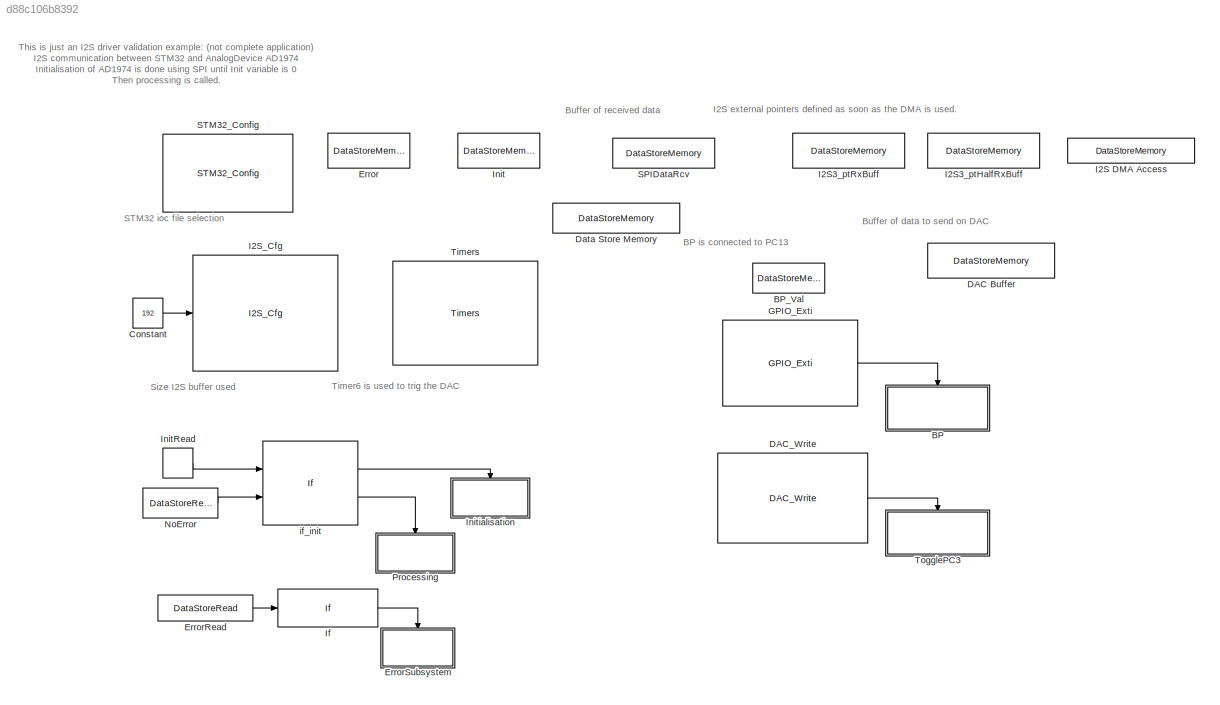
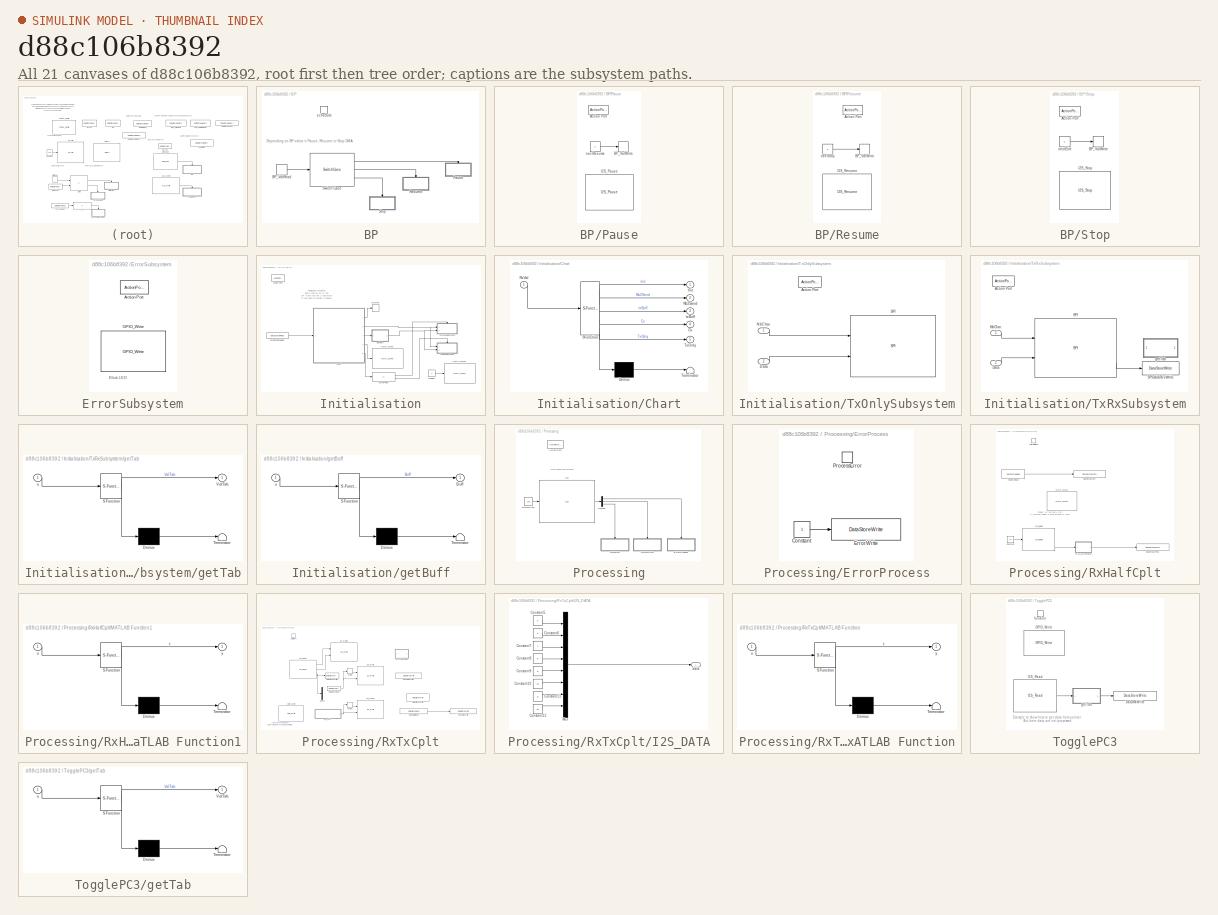
[diagram: thumbnail index - all 21 canvases of the model, root first then tree order]
MODEL slx_d88c106b8392
KIND model
CONFIG AbsTol = auto
CONFIG EnableMultiTasking = off
CONFIG FixedStep = 0.01
CONFIG MaxStep = auto
CONFIG MinStep = auto
CONFIG RelTol = 1e-3
CONFIG SampleTimeConstraint = Unconstrained
CONFIG Solver = FixedStepDiscrete
CONFIG SolverName = FixedStepDiscrete
CONFIG StartTime = 0.0
CONFIG StopTime = 10.0
BLOCK [SubSystem] BP
  Ports = [0, 0, 0, 1]
  RequestExecContextInheritance = off
  TreatAsAtomicUnit = on
BLOCK [DataStoreRead] BP/BP_ValRead
  DataStoreName = BP_Val
  Ports = [0, 1]
BLOCK [SubSystem] BP/Pause
  Ports = [0, 0, 0, 0, 0, 0, 0, 1]
  RequestExecContextInheritance = off
  TreatAsAtomicUnit = on
BLOCK [ActionPort] BP/Pause/Action Port
  ActionType = case
BLOCK [DataStoreWrite] BP/Pause/BP_ValWrite
  DataStoreName = BP_Val
  Ports = [1]
BLOCK [Reference] BP/Pause/I2S_Pause  REF=I2S_Lib/I2S_Pause
  Ports = []
  SourceBlock = I2S_Lib/I2S_Pause
  SourceProductName = Target Support Package - STM32 Adapter
  SourceType = I2S
BLOCK [Constant] BP/Pause/nextResume
  OutDataTypeStr = uint8
  Value = 2
BLOCK [SubSystem] BP/Resume
  Ports = [0, 0, 0, 0, 0, 0, 0, 1]
  RequestExecContextInheritance = off
  TreatAsAtomicUnit = on
BLOCK [ActionPort] BP/Resume/Action Port
  ActionType = case
BLOCK [DataStoreWrite] BP/Resume/BP_ValWrite
  DataStoreName = BP_Val
  Ports = [1]
BLOCK [Reference] BP/Resume/I2S_Resume  REF=I2S_Lib/I2S_Resume
  Ports = []
  SourceBlock = I2S_Lib/I2S_Resume
  SourceProductName = Target Support Package - STM32 Adapter
  SourceType = I2S
BLOCK [Constant] BP/Resume/nextStop 
  OutDataTypeStr = uint8
  Value = 3
BLOCK [SubSystem] BP/Stop
  Ports = [0, 0, 0, 0, 0, 0, 0, 1]
  RequestExecContextInheritance = off
  TreatAsAtomicUnit = on
BLOCK [ActionPort] BP/Stop/Action Port
  ActionType = case
BLOCK [DataStoreWrite] BP/Stop/BP_ValWrite
  DataStoreName = BP_Val
  Ports = [1]
BLOCK [Reference] BP/Stop/I2S_Stop  REF=I2S_Lib/I2S_Stop
  Ports = []
  SourceBlock = I2S_Lib/I2S_Stop
  SourceProductName = Target Support Package - STM32 Adapter
  SourceType = I2S
BLOCK [Constant] BP/Stop/nextEnd
  OutDataTypeStr = uint8
  Value = 0
BLOCK [SwitchCase] BP/Switch Case
  CaseConditions = {1,2,3}
  Ports = [1, 3]
  ShowDefaultCase = off
BLOCK [TriggerPort] BP/schedule
  Ports = []
  StatesWhenEnabling = held
  TriggerType = function-call
  VariantControl = Variant
BLOCK [DataStoreMemory] BP_Val
  DataStoreName = BP_Val
  InitialValue = 1
  OutDataTypeStr = uint8
  ReadBeforeWriteMsg = warning
  ShowAdditionalParam = off
  WriteAfterReadMsg = warning
  WriteAfterWriteMsg = warning
BLOCK [Constant] Constant
  OutDataTypeStr = uint8
  Value = 192
BLOCK [DataStoreMemory] DAC Buffer
  DataStoreName = DAC1_DmaCh1
  Dimensions = 48
  OutDataTypeStr = uint16
  RTWStateStorageClass = ImportedExternPointer
  ReadBeforeWriteMsg = warning
  ShowAdditionalParam = off
  WriteAfterReadMsg = warning
  WriteAfterWriteMsg = warning
BLOCK [Reference] DAC_Write  REF=DAC_Lib/DAC_Write
  Ports = [0, 1]
  SourceBlock = DAC_Lib/DAC_Write
  SourceProductName = Target Support Package - STM32 Adapter
  SourceType = DAC_Write
BLOCK [DataStoreMemory] Data Store Memory
  DataStoreName = I2S3_RxBuffer
  Dimensions = 192
  ReadBeforeWriteMsg = warning
  ShowAdditionalParam = off
  WriteAfterReadMsg = warning
  WriteAfterWriteMsg = warning
BLOCK [DataStoreMemory] Error
  DataStoreName = ErrorDetected
  OutDataTypeStr = uint8
  ReadBeforeWriteMsg = warning
  ShowAdditionalParam = off
  WriteAfterReadMsg = warning
  WriteAfterWriteMsg = warning
BLOCK [DataStoreRead] ErrorRead
  DataStoreName = ErrorDetected
  Ports = [0, 1]
BLOCK [SubSystem] ErrorSubsystem
  Ports = [0, 0, 0, 0, 0, 0, 0, 1]
  RequestExecContextInheritance = off
  TreatAsAtomicUnit = on
BLOCK [ActionPort] ErrorSubsystem/Action Port
  ActionType = then
BLOCK [Reference] ErrorSubsystem/GPIO_Write  REF=GPIO_Lib/GPIO_Write
  Ports = []
  SourceBlock = GPIO_Lib/GPIO_Write
  SourceProductName = Target Support Package - STM32 Adapter
  SourceType = GPIO_Write
BLOCK [Reference] GPIO_Exti  REF=GPIO_Lib/GPIO_Exti
  Ports = [0, 1]
  SourceBlock = GPIO_Lib/GPIO_Exti
  SourceProductName = Target Support Package - STM32 Adapter
  SourceType = GPIO_Exti
BLOCK [DataStoreMemory] I2S DMA  Access
  DataStoreName = I2S_Value
  Dimensions = 96
  OutDataTypeStr = uint16
  ReadBeforeWriteMsg = warning
  ShowAdditionalParam = off
  WriteAfterReadMsg = warning
  WriteAfterWriteMsg = warning
BLOCK [DataStoreMemory] I2S3_ptHalfRxBuff
  DataStoreName = I2S3_ptHalfRxBuff
  Dimensions = 96
  OutDataTypeStr = uint16
  RTWStateStorageClass = ImportedExternPointer
  ReadBeforeWriteMsg = warning
  ShowAdditionalParam = off
  WriteAfterReadMsg = warning
  WriteAfterWriteMsg = warning
BLOCK [DataStoreMemory] I2S3_ptRxBuff
  DataStoreName = I2S3_ptRxBuff
  Dimensions = 96
  OutDataTypeStr = uint16
  RTWStateStorageClass = ImportedExternPointer
  ReadBeforeWriteMsg = warning
  ShowAdditionalParam = off
  WriteAfterReadMsg = warning
  WriteAfterWriteMsg = warning
BLOCK [Reference] I2S_Cfg  REF=I2S_Lib/I2S_Cfg
  Ports = [1]
  SourceBlock = I2S_Lib/I2S_Cfg
  SourceProductName = Target Support Package - STM32 Adapter
  SourceType = I2S
BLOCK [If] If
  Ports = [1, 1]
  ShowElse = off
BLOCK [DataStoreMemory] Init
  DataStoreName = Init
  OutDataTypeStr = uint8
  ReadBeforeWriteMsg = warning
  ShowAdditionalParam = off
  WriteAfterReadMsg = warning
  WriteAfterWriteMsg = warning
BLOCK [DataStoreRead] InitRead
  DataStoreName = Init
  Ports = [0, 1]
BLOCK [SubSystem] Initialisation
  Ports = [0, 0, 0, 0, 0, 0, 0, 1]
  RequestExecContextInheritance = off
  TreatAsAtomicUnit = on
BLOCK [ActionPort] Initialisation/Action Port
  ActionType = then
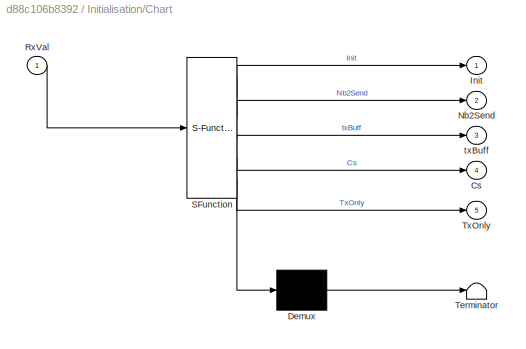
BLOCK [SubSystem] Initialisation/Chart
  ErrorFcn = Stateflow.Translate.translate
  PermitHierarchicalResolution = ExplicitOnly
  Ports = [1, 5]
  RequestExecContextInheritance = off
  SFBlockType = Chart
  TreatAsAtomicUnit = on
BLOCK [Demux] Initialisation/Chart/ Demux 
  Outputs = 1
  Ports = [1, 1]
BLOCK [S-Function] Initialisation/Chart/ SFunction 
  EnableBusSupport = off
  FunctionName = sf_sfun
  PortCounts = [1 6]
  Ports = [1, 6]
  SFcnIsStateOwnerBlock = off
  SFunctionDeploymentMode = off
  Tag = Stateflow S-Function I2S_Test 3
BLOCK [Terminator] Initialisation/Chart/ Terminator 
BLOCK [Outport] Initialisation/Chart/Cs
  IconDisplay = Port number
  Port = 4
BLOCK [Outport] Initialisation/Chart/Init
  IconDisplay = Port number
BLOCK [Outport] Initialisation/Chart/Nb2Send
  IconDisplay = Port number
  Port = 2
BLOCK [Inport] Initialisation/Chart/RxVal
  IconDisplay = Port number
BLOCK [Outport] Initialisation/Chart/TxOnly
  IconDisplay = Port number
  Port = 5
BLOCK [Outport] Initialisation/Chart/txBuff
  IconDisplay = Port number
  Port = 3
BLOCK [Reference] Initialisation/GPIO_Write  REF=GPIO_Lib/GPIO_Write
  Ports = [1]
  Priority = 0
  SourceBlock = GPIO_Lib/GPIO_Write
  SourceProductName = Target Support Package - STM32 Adapter
  SourceType = GPIO_Write
BLOCK [Reference] Initialisation/GPIO_Write1  REF=GPIO_Lib/GPIO_Write
  Ports = [1]
  Priority = 2
  SourceBlock = GPIO_Lib/GPIO_Write
  SourceProductName = Target Support Package - STM32 Adapter
  SourceType = GPIO_Write
BLOCK [DataStoreWrite] Initialisation/IntWrite
  DataStoreName = Init
  Ports = [1]
BLOCK [DataStoreRead] Initialisation/SPIDataRcvRead
  DataStoreName = SPIDataRcv
  Ports = [0, 1]
BLOCK [SubSystem] Initialisation/TxOnlySubsystem
  Ports = [2, 0, 0, 0, 0, 0, 0, 1]
  RequestExecContextInheritance = off
  TreatAsAtomicUnit = on
BLOCK [ActionPort] Initialisation/TxOnlySubsystem/Action Port
  ActionType = then
BLOCK [Inport] Initialisation/TxOnlySubsystem/Data
  IconDisplay = Port number
  Port = 2
BLOCK [Inport] Initialisation/TxOnlySubsystem/NbChar
  IconDisplay = Port number
BLOCK [Reference] Initialisation/TxOnlySubsystem/SPI  REF=SPI_Lib/SPI
  Ports = [2, 1]
  SourceBlock = SPI_Lib/SPI
  SourceProductName = Target Support Package - STM32 Adapter
  SourceType = SPI
BLOCK [If] Initialisation/TxOnlyTest
  Ports = [1, 2]
BLOCK [SubSystem] Initialisation/TxRxSubsystem
  Ports = [2, 0, 0, 0, 0, 0, 0, 1]
  RequestExecContextInheritance = off
  TreatAsAtomicUnit = on
BLOCK [ActionPort] Initialisation/TxRxSubsystem/Action Port
  ActionType = else
BLOCK [Inport] Initialisation/TxRxSubsystem/Data
  IconDisplay = Port number
  Port = 2
BLOCK [Inport] Initialisation/TxRxSubsystem/NbChar
  IconDisplay = Port number
BLOCK [Reference] Initialisation/TxRxSubsystem/SPI  REF=SPI_Lib/SPI
  Ports = [2, 3]
  Priority = 1
  SourceBlock = SPI_Lib/SPI
  SourceProductName = Target Support Package - STM32 Adapter
  SourceType = SPI
BLOCK [DataStoreWrite] Initialisation/TxRxSubsystem/SPIDataRcvWrite
  DataStoreName = SPIDataRcv
  Ports = [1]
BLOCK [SubSystem] Initialisation/TxRxSubsystem/getTab
  Commented = on
  ErrorFcn = Stateflow.Translate.translate
  PermitHierarchicalResolution = ExplicitOnly
  Ports = [1, 1]
  RequestExecContextInheritance = off
  SFBlockType = MATLAB Function
  TreatAsAtomicUnit = on
BLOCK [Demux] Initialisation/TxRxSubsystem/getTab/ Demux 
  Outputs = 1
  Ports = [1, 1]
BLOCK [S-Function] Initialisation/TxRxSubsystem/getTab/ SFunction 
  EnableBusSupport = off
  FunctionName = sf_sfun
  PortCounts = [1 2]
  Ports = [1, 2]
  SFcnIsStateOwnerBlock = off
  SFunctionDeploymentMode = off
  Tag = Stateflow S-Function I2S_Test 4
BLOCK [Terminator] Initialisation/TxRxSubsystem/getTab/ Terminator 
BLOCK [Outport] Initialisation/TxRxSubsystem/getTab/ValTab
  IconDisplay = Port number
BLOCK [Inport] Initialisation/TxRxSubsystem/getTab/u
  IconDisplay = Port number
BLOCK [SubSystem] Initialisation/getBuff
  ErrorFcn = Stateflow.Translate.translate
  PermitHierarchicalResolution = ExplicitOnly
  Ports = [1, 1]
  RequestExecContextInheritance = off
  SFBlockType = MATLAB Function
  TreatAsAtomicUnit = on
BLOCK [Demux] Initialisation/getBuff/ Demux 
  Outputs = 1
  Ports = [1, 1]
BLOCK [S-Function] Initialisation/getBuff/ SFunction 
  EnableBusSupport = off
  FunctionName = sf_sfun
  PortCounts = [1 2]
  Ports = [1, 2]
  SFcnIsStateOwnerBlock = off
  SFunctionDeploymentMode = off
  Tag = Stateflow S-Function I2S_Test 1
BLOCK [Terminator] Initialisation/getBuff/ Terminator 
BLOCK [Outport] Initialisation/getBuff/Buff
  IconDisplay = Port number
BLOCK [Inport] Initialisation/getBuff/u
  IconDisplay = Port number
BLOCK [Constant] Initialisation/unSelect
BLOCK [DataStoreRead] NoError
  DataStoreName = ErrorDetected
  Ports = [0, 1]
BLOCK [SubSystem] Processing
  Ports = [0, 0, 0, 0, 0, 0, 0, 1]
  RequestExecContextInheritance = off
  TreatAsAtomicUnit = on
BLOCK [ActionPort] Processing/Action Port
  ActionType = else
BLOCK [Constant] Processing/BufferSize
  Value = 192
BLOCK [Demux] Processing/Demux
  DisplayOption = bar
  Outputs = 3
  Ports = [1, 3]
BLOCK [SubSystem] Processing/ErrorProcess
  Ports = [0, 0, 0, 1]
  RequestExecContextInheritance = off
  TreatAsAtomicUnit = on
BLOCK [Constant] Processing/ErrorProcess/Constant
  OutDataTypeStr = uint8
BLOCK [DataStoreWrite] Processing/ErrorProcess/ErrorWrite
  DataStoreName = ErrorDetected
  Ports = [1]
BLOCK [TriggerPort] Processing/ErrorProcess/ProcessError
  Ports = []
  StatesWhenEnabling = held
  TriggerType = function-call
  VariantControl = Variant
BLOCK [Reference] Processing/I2S  REF=I2S_Lib/I2S
  Ports = [1, 1]
  SourceBlock = I2S_Lib/I2S
  SourceProductName = Target Support Package - STM32 Adapter
  SourceType = I2S
BLOCK [SubSystem] Processing/RxHalfCplt
  Ports = [0, 0, 0, 1]
  RequestExecContextInheritance = off
  TreatAsAtomicUnit = on
BLOCK [Constant] Processing/RxHalfCplt/Constant
  OutDataTypeStr = uint16
  Value = 21
BLOCK [DataStoreWrite] Processing/RxHalfCplt/DacDmaWrite
  Commented = on
  DataStoreName = DAC1_DmaCh1
  Ports = [1]
BLOCK [DataStoreWrite] Processing/RxHalfCplt/DacDmaWrite1
  DataStoreName = DAC1_DmaCh1
  Ports = [1]
BLOCK [Reference] Processing/RxHalfCplt/GPIO_Write  REF=GPIO_Lib/GPIO_Write
  Ports = []
  SourceBlock = GPIO_Lib/GPIO_Write
  SourceProductName = Target Support Package - STM32 Adapter
  SourceType = GPIO_Write
BLOCK [Reference] Processing/RxHalfCplt/I2S_Read  REF=I2S_Lib/I2S_Read
  Ports = [1, 3]
  SourceBlock = I2S_Lib/I2S_Read
  SourceProductName = Target Support Package - STM32 Adapter
  SourceType = I2S
BLOCK [SubSystem] Processing/RxHalfCplt/MATLAB Function1
  ErrorFcn = Stateflow.Translate.translate
  PermitHierarchicalResolution = ExplicitOnly
  Ports = [1, 1]
  RequestExecContextInheritance = off
  SFBlockType = MATLAB Function
  TreatAsAtomicUnit = on
BLOCK [Demux] Processing/RxHalfCplt/MATLAB Function1/ Demux 
  Outputs = 1
  Ports = [1, 1]
BLOCK [S-Function] Processing/RxHalfCplt/MATLAB Function1/ SFunction 
  EnableBusSupport = off
  FunctionName = sf_sfun
  PortCounts = [1 2]
  Ports = [1, 2]
  SFcnIsStateOwnerBlock = off
  SFunctionDeploymentMode = off
  Tag = Stateflow S-Function I2S_Test 7
BLOCK [Terminator] Processing/RxHalfCplt/MATLAB Function1/ Terminator 
BLOCK [Inport] Processing/RxHalfCplt/MATLAB Function1/u
  IconDisplay = Port number
BLOCK [Outport] Processing/RxHalfCplt/MATLAB Function1/y
  IconDisplay = Port number
BLOCK [DataStoreRead] Processing/RxHalfCplt/RxBuffRead
  Commented = on
  DataStoreName = I2S3_ptRxBuff
  Ports = [0, 1]
BLOCK [TriggerPort] Processing/RxHalfCplt/halfCallback
  Ports = []
  StatesWhenEnabling = held
  TriggerType = function-call
  VariantControl = Variant
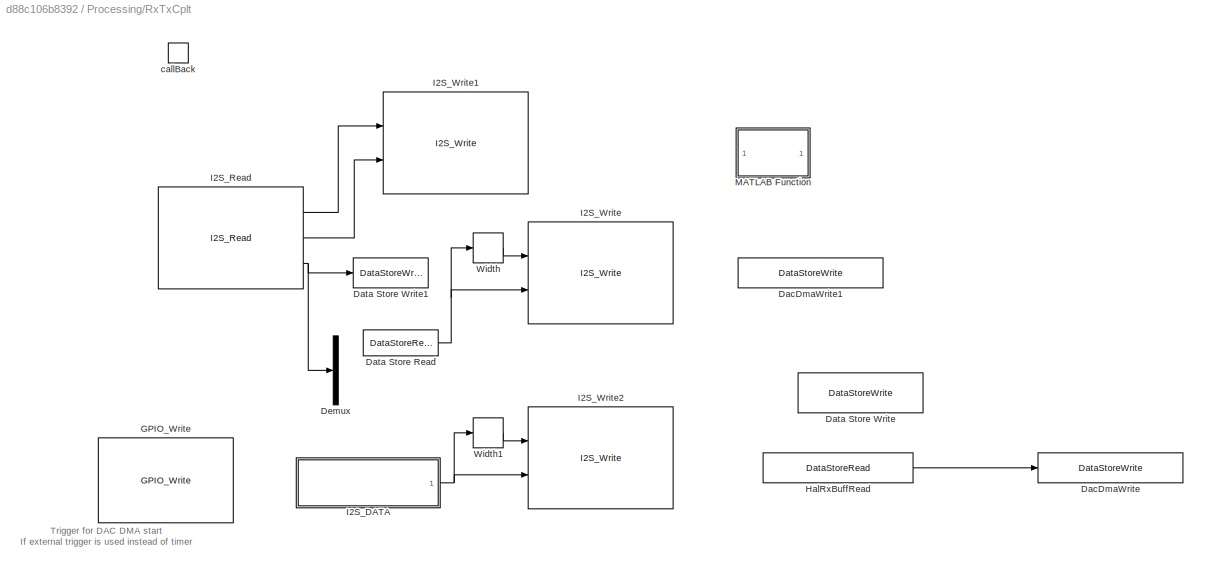
BLOCK [SubSystem] Processing/RxTxCplt
  Ports = [0, 0, 0, 1]
  RequestExecContextInheritance = off
  TreatAsAtomicUnit = on
BLOCK [DataStoreWrite] Processing/RxTxCplt/DacDmaWrite
  Commented = on
  DataStoreName = DAC1_DmaCh1
  Ports = [1]
BLOCK [DataStoreWrite] Processing/RxTxCplt/DacDmaWrite1
  Commented = on
  DataStoreName = DAC1_DmaCh1
  Ports = [1]
BLOCK [DataStoreRead] Processing/RxTxCplt/Data Store Read
  DataStoreName = I2S3_RxBuffer
  Ports = [0, 1]
BLOCK [DataStoreWrite] Processing/RxTxCplt/Data Store Write
  Commented = on
  DataStoreName = I2S3_RxBuffer
  Ports = [1]
BLOCK [DataStoreWrite] Processing/RxTxCplt/Data Store Write1
  DataStoreName = I2S3_RxBuffer
  Ports = [1]
BLOCK [Demux] Processing/RxTxCplt/Demux
  DisplayOption = bar
  Outputs = 2
  Ports = [1, 2]
BLOCK [Reference] Processing/RxTxCplt/GPIO_Write  REF=GPIO_Lib/GPIO_Write
  Ports = []
  SourceBlock = GPIO_Lib/GPIO_Write
  SourceProductName = Target Support Package - STM32 Adapter
  SourceType = GPIO_Write
BLOCK [DataStoreRead] Processing/RxTxCplt/HalRxBuffRead
  Commented = on
  DataStoreName = I2S3_ptHalfRxBuff
  Ports = [0, 1]
BLOCK [SubSystem] Processing/RxTxCplt/I2S_DATA
  Ports = [0, 1]
  RequestExecContextInheritance = off
BLOCK [Constant] Processing/RxTxCplt/I2S_DATA/Constant10
  OutDataTypeStr = uint8
  Value = 10
BLOCK [Constant] Processing/RxTxCplt/I2S_DATA/Constant11
  OutDataTypeStr = uint8
  Value = 11
BLOCK [Constant] Processing/RxTxCplt/I2S_DATA/Constant12
  OutDataTypeStr = uint8
  Value = 15
BLOCK [Constant] Processing/RxTxCplt/I2S_DATA/Constant5
  OutDataTypeStr = uint8
  Value = 5
BLOCK [Constant] Processing/RxTxCplt/I2S_DATA/Constant6
  OutDataTypeStr = uint8
  Value = 6
BLOCK [Constant] Processing/RxTxCplt/I2S_DATA/Constant7
  OutDataTypeStr = uint8
  Value = 7
BLOCK [Constant] Processing/RxTxCplt/I2S_DATA/Constant8
  OutDataTypeStr = uint8
  Value = 8
BLOCK [Constant] Processing/RxTxCplt/I2S_DATA/Constant9
  OutDataTypeStr = uint8
  Value = 9
BLOCK [Mux] Processing/RxTxCplt/I2S_DATA/Mux
  DisplayOption = bar
  Inputs = 8
  Ports = [8, 1]
BLOCK [Outport] Processing/RxTxCplt/I2S_DATA/data
  IconDisplay = Port number
BLOCK [Reference] Processing/RxTxCplt/I2S_Read  REF=I2S_Lib/I2S_Read
  Ports = [0, 3]
  SourceBlock = I2S_Lib/I2S_Read
  SourceProductName = Target Support Package - STM32 Adapter
  SourceType = I2S
BLOCK [Reference] Processing/RxTxCplt/I2S_Write  REF=I2S_Lib/I2S_Write
  Ports = [2]
  SourceBlock = I2S_Lib/I2S_Write
  SourceProductName = Target Support Package - STM32 Adapter
  SourceType = I2S
BLOCK [Reference] Processing/RxTxCplt/I2S_Write1  REF=I2S_Lib/I2S_Write
  Ports = [2]
  SourceBlock = I2S_Lib/I2S_Write
  SourceProductName = Target Support Package - STM32 Adapter
  SourceType = I2S
BLOCK [Reference] Processing/RxTxCplt/I2S_Write2  REF=I2S_Lib/I2S_Write
  Ports = [2]
  SourceBlock = I2S_Lib/I2S_Write
  SourceProductName = Target Support Package - STM32 Adapter
  SourceType = I2S
BLOCK [SubSystem] Processing/RxTxCplt/MATLAB Function
  Commented = on
  ErrorFcn = Stateflow.Translate.translate
  PermitHierarchicalResolution = ExplicitOnly
  Ports = [1, 1]
  RequestExecContextInheritance = off
  SFBlockType = MATLAB Function
  TreatAsAtomicUnit = on
BLOCK [Demux] Processing/RxTxCplt/MATLAB Function/ Demux 
  Outputs = 1
  Ports = [1, 1]
BLOCK [S-Function] Processing/RxTxCplt/MATLAB Function/ SFunction 
  EnableBusSupport = off
  FunctionName = sf_sfun
  PortCounts = [1 2]
  Ports = [1, 2]
  SFcnIsStateOwnerBlock = off
  SFunctionDeploymentMode = off
  Tag = Stateflow S-Function I2S_Test 5
BLOCK [Terminator] Processing/RxTxCplt/MATLAB Function/ Terminator 
BLOCK [Inport] Processing/RxTxCplt/MATLAB Function/u
  IconDisplay = Port number
BLOCK [Outport] Processing/RxTxCplt/MATLAB Function/y
  IconDisplay = Port number
BLOCK [Width] Processing/RxTxCplt/Width
BLOCK [Width] Processing/RxTxCplt/Width1
BLOCK [TriggerPort] Processing/RxTxCplt/callBack
  Ports = []
  StatesWhenEnabling = held
  TriggerType = function-call
  VariantControl = Variant
BLOCK [DataStoreMemory] SPIDataRcv
  DataStoreName = SPIDataRcv
  Dimensions = 3
  OutDataTypeStr = uint8
  ReadBeforeWriteMsg = warning
  ShowAdditionalParam = off
  WriteAfterReadMsg = warning
  WriteAfterWriteMsg = warning
BLOCK [Reference] STM32_Config  REF=STM32_Config_Lib/STM32_Config
  Ports = []
  Priority = 0
  SourceBlock = STM32_Config_Lib/STM32_Config
  SourceProductName = Target Support Package - STM32 Adapter
  SourceType = STM32_Config
BLOCK [Reference] Timers  REF=TIMERS_Lib/Timers
  Ports = []
  SourceBlock = TIMERS_Lib/Timers
  SourceProductName = Target Support Package - STM32 Adapter
  SourceType = Timers
BLOCK [SubSystem] TogglePC3
  Ports = [0, 0, 0, 1]
  RequestExecContextInheritance = off
  TreatAsAtomicUnit = on
BLOCK [DataStoreWrite] TogglePC3/DacDmaWrite
  Commented = on
  DataStoreName = DAC1_DmaCh1
  Ports = [1]
BLOCK [Reference] TogglePC3/GPIO_Write  REF=GPIO_Lib/GPIO_Write
  Ports = []
  SourceBlock = GPIO_Lib/GPIO_Write
  SourceProductName = Target Support Package - STM32 Adapter
  SourceType = GPIO_Write
BLOCK [Reference] TogglePC3/I2S_Read  REF=I2S_Lib/I2S_Read
  Commented = on
  Ports = [0, 3]
  SourceBlock = I2S_Lib/I2S_Read
  SourceProductName = Target Support Package - STM32 Adapter
  SourceType = I2S
BLOCK [TriggerPort] TogglePC3/function
  Ports = []
  StatesWhenEnabling = held
  TriggerType = function-call
  VariantControl = Variant
BLOCK [SubSystem] TogglePC3/getTab
  Commented = on
  ErrorFcn = Stateflow.Translate.translate
  PermitHierarchicalResolution = ExplicitOnly
  Ports = [1, 1]
  RequestExecContextInheritance = off
  SFBlockType = MATLAB Function
  TreatAsAtomicUnit = on
BLOCK [Demux] TogglePC3/getTab/ Demux 
  Outputs = 1
  Ports = [1, 1]
BLOCK [S-Function] TogglePC3/getTab/ SFunction 
  EnableBusSupport = off
  FunctionName = sf_sfun
  PortCounts = [1 2]
  Ports = [1, 2]
  SFcnIsStateOwnerBlock = off
  SFunctionDeploymentMode = off
  Tag = Stateflow S-Function I2S_Test 2
BLOCK [Terminator] TogglePC3/getTab/ Terminator 
BLOCK [Outport] TogglePC3/getTab/ValTab
  IconDisplay = Port number
BLOCK [Inport] TogglePC3/getTab/u
  IconDisplay = Port number
BLOCK [If] if_init
  IfExpression = (u1 == 0) & (u2 == 0)
  NumInputs = 2
  Ports = [2, 2]
ANNOTATION (root): This is just an I2S driver validation example: (not complete application) I2S communication between STM32 and AnalogDevice AD1974 Initialisation of AD1974 is done using SPI until Init variable is 0 Then processing is called.
ANNOTATION (root): BP is connected to PC13
ANNOTATION (root): Buffer of data to send on DAC
ANNOTATION (root): Buffer of received data
ANNOTATION (root): I2S external pointers defined as soon as the DMA is used.
ANNOTATION (root): STM32 ioc file selection
ANNOTATION (root): Size I2S buffer used
ANNOTATION (root): Timer6 is used to trig the DAC
ANNOTATION BP: Depending on BP value it Pause, Resume or Stop DMA
ANNOTATION ErrorSubsystem: Blink LED
ANNOTATION Initialisation: Initialisation sequence. PB6 is used as CS for SPI SPI frame has got 3 characters Tx only when no answer is needed
ANNOTATION Processing: Data should be process
ANNOTATION Processing/RxHalfCplt: Trigger for DAC DMA start If external trigger is used instead of timer
ANNOTATION Processing/RxTxCplt: Trigger for DAC DMA start If external trigger is used instead of timer
ANNOTATION TogglePC3: Exemple to show how to get data from pointer. But here data are not processed
LINE BP/BP_ValRead:1 -> BP/Switch Case:1
LINE BP/Pause/nextResume:1 -> BP/Pause/BP_ValWrite:1
LINE BP/Resume/nextStop :1 -> BP/Resume/BP_ValWrite:1
LINE BP/Stop/nextEnd:1 -> BP/Stop/BP_ValWrite:1
LINE BP/Switch Case:1 -> BP/Pause:ifaction
LINE BP/Switch Case:2 -> BP/Resume:ifaction
LINE BP/Switch Case:3 -> BP/Stop:ifaction
LINE Constant:1 -> I2S_Cfg:1
LINE DAC_Write:1 -> TogglePC3:trigger
LINE ErrorRead:1 -> If:1
LINE GPIO_Exti:1 -> BP:trigger
LINE If:1 -> ErrorSubsystem:ifaction
LINE InitRead:1 -> if_init:1
LINE Initialisation/Chart:1 -> Initialisation/IntWrite:1
NET Initialisation/Chart:2 -> Initialisation/TxOnlySubsystem:1, Initialisation/TxRxSubsystem:1
LINE Initialisation/Chart:3 -> Initialisation/getBuff:1
LINE Initialisation/Chart:4 -> Initialisation/GPIO_Write:1
LINE Initialisation/Chart:5 -> Initialisation/TxOnlyTest:1
LINE Initialisation/SPIDataRcvRead:1 -> Initialisation/Chart:1
LINE Initialisation/TxOnlySubsystem/Data:1 -> Initialisation/TxOnlySubsystem/SPI:2
LINE Initialisation/TxOnlySubsystem/NbChar:1 -> Initialisation/TxOnlySubsystem/SPI:1
LINE Initialisation/TxOnlyTest:1 -> Initialisation/TxOnlySubsystem:ifaction
LINE Initialisation/TxOnlyTest:2 -> Initialisation/TxRxSubsystem:ifaction
LINE Initialisation/TxRxSubsystem/Data:1 -> Initialisation/TxRxSubsystem/SPI:2
LINE Initialisation/TxRxSubsystem/NbChar:1 -> Initialisation/TxRxSubsystem/SPI:1
LINE Initialisation/TxRxSubsystem/SPI:3 -> Initialisation/TxRxSubsystem/SPIDataRcvWrite:1
NET Initialisation/getBuff:1 -> Initialisation/TxOnlySubsystem:2, Initialisation/TxRxSubsystem:2
LINE Initialisation/unSelect:1 -> Initialisation/GPIO_Write1:1
LINE NoError:1 -> if_init:2
LINE Processing/BufferSize:1 -> Processing/I2S:1
LINE Processing/Demux:1 -> Processing/ErrorProcess:trigger
LINE Processing/Demux:2 -> Processing/RxHalfCplt:trigger
LINE Processing/Demux:3 -> Processing/RxTxCplt:trigger
LINE Processing/ErrorProcess/Constant:1 -> Processing/ErrorProcess/ErrorWrite:1
LINE Processing/I2S:1 -> Processing/Demux:1
LINE Processing/RxHalfCplt/Constant:1 -> Processing/RxHalfCplt/I2S_Read:1
LINE Processing/RxHalfCplt/I2S_Read:3 -> Processing/RxHalfCplt/MATLAB Function1:1
LINE Processing/RxHalfCplt/MATLAB Function1:1 -> Processing/RxHalfCplt/DacDmaWrite1:1
LINE Processing/RxHalfCplt/RxBuffRead:1 -> Processing/RxHalfCplt/DacDmaWrite:1
NET Processing/RxTxCplt/Data Store Read:1 -> Processing/RxTxCplt/I2S_Write:2, Processing/RxTxCplt/Width:1
LINE Processing/RxTxCplt/HalRxBuffRead:1 -> Processing/RxTxCplt/DacDmaWrite:1
LINE Processing/RxTxCplt/I2S_DATA/Constant10:1 -> Processing/RxTxCplt/I2S_DATA/Mux:6
LINE Processing/RxTxCplt/I2S_DATA/Constant11:1 -> Processing/RxTxCplt/I2S_DATA/Mux:7
LINE Processing/RxTxCplt/I2S_DATA/Constant12:1 -> Processing/RxTxCplt/I2S_DATA/Mux:8
LINE Processing/RxTxCplt/I2S_DATA/Constant5:1 -> Processing/RxTxCplt/I2S_DATA/Mux:1
LINE Processing/RxTxCplt/I2S_DATA/Constant6:1 -> Processing/RxTxCplt/I2S_DATA/Mux:2
LINE Processing/RxTxCplt/I2S_DATA/Constant7:1 -> Processing/RxTxCplt/I2S_DATA/Mux:3
LINE Processing/RxTxCplt/I2S_DATA/Constant8:1 -> Processing/RxTxCplt/I2S_DATA/Mux:4
LINE Processing/RxTxCplt/I2S_DATA/Constant9:1 -> Processing/RxTxCplt/I2S_DATA/Mux:5
LINE Processing/RxTxCplt/I2S_DATA/Mux:1 -> Processing/RxTxCplt/I2S_DATA/data:1
NET Processing/RxTxCplt/I2S_DATA:1 -> Processing/RxTxCplt/I2S_Write2:2, Processing/RxTxCplt/Width1:1
LINE Processing/RxTxCplt/I2S_Read:1 -> Processing/RxTxCplt/I2S_Write1:1
LINE Processing/RxTxCplt/I2S_Read:2 -> Processing/RxTxCplt/I2S_Write1:2
NET Processing/RxTxCplt/I2S_Read:3 -> Processing/RxTxCplt/Data Store Write1:1, Processing/RxTxCplt/Demux:1
LINE Processing/RxTxCplt/Width1:1 -> Processing/RxTxCplt/I2S_Write2:1
LINE Processing/RxTxCplt/Width:1 -> Processing/RxTxCplt/I2S_Write:1
LINE TogglePC3/I2S_Read:2 -> TogglePC3/getTab:1
LINE TogglePC3/getTab:1 -> TogglePC3/DacDmaWrite:1
LINE if_init:1 -> Initialisation:ifaction
LINE if_init:2 -> Processing:ifaction
note: NET lines group one-source signal fan-out (src -> all destinations, sorted); 1:1 wires keep LINE
CHART Initialisation/getBuff states=1 transitions=1
  STATE_LABEL 'eML_blk_kernel()'
  STATE_LABEL "SCRIPT:\nfunction Buff = getBuff(u)\nif coder.target('Sfun')\n% Executing in MATLAB, Buff is null\nBuff = uint32(0);\nelse\n% Executing in the generated code. \n%buffer = zeros(1,3,'uint8');\n%coder.ceval('memcpy',coder.wref(buffer),coder.rref(u),3);\n%y = uint8(buffer(1:3));\n%Buff = uint32(coder.ref(y));\nBuff = coder.ceval('getBuffPtr',coder.ref(u));\nend\nend\n"
CHART TogglePC3/getTab states=1 transitions=1
  STATE_LABEL 'eML_blk_kernel()'
  STATE_LABEL "SCRIPT:\nfunction ValTab = I2SToDAC(u)\nif coder.target('Sfun')\n% Executing in MATLAB, Buff is null\nValTab = zeros(1,48,'uint8');\nelse\n% Executing in the generated code. \n% Twist coder functions in order  to use input as a pointer.\nValTab = zeros(1,48,'uint8');\nptI2SData = coder.opaque('unsigned short*','0');\ncoder.ceval('ptI2SData=(unsigned short*)',u);\ncoder.ceval('memcpy',coder.wref(ValTab),ptI2S...<+18ch>"
CHART Initialisation/Chart states=14 transitions=15
  STATE_LABEL 'DumyRead\nen:\ntxBuff[0] = uint8(9);  \ntxBuff[1] = uint8(0);\ntxBuff[2] = uint8(0);\nex: Nb2Send = uint8(3);\nInit = uint8(0);\nCs = uint8(0);\nTxOnly = uint8(0);'
  STATE_LABEL 'DumyRead2\nentry: txBuff[0] = uint8(9);  \ntxBuff[1] = uint8(0);\ntxBuff[2] = uint8(0);\nNb2Send = uint8(3);\nInit = uint8(0);\nCs = uint8(0);\nTxOnly = uint8(0);'
  STATE_LABEL 'DumyRead4\nentry: txBuff[0] = uint8(9);  \ntxBuff[1] = uint8(0);\ntxBuff[2] = uint8(0);\nNb2Send = uint8(3);\nInit = uint8(0);\nCs = uint8(0);\nTxOnly = uint8(0);'
  STATE_LABEL 'WORDLENGTH_16\nentry: txBuff[0] = uint8(8);  \ntxBuff[1] = uint8(15);\ntxBuff[2] = uint8(3);\nNb2Send = uint8(3);\nInit = uint8(0);\nCs = uint8(0);\nTxOnly = uint8(1);'
  STATE_LABEL 'PLL_OFF\nentry: txBuff[0] = uint8(8);  \ntxBuff[1] = uint8(0);\ntxBuff[2] = uint8(1);\nNb2Send = uint8(3);\nInit = uint8(0);\nCs = uint8(0);\nTxOnly = uint8(1);\n'
  STATE_LABEL 'PLL_LOCK\nentry: txBuff[0] = uint8(9);  \ntxBuff[1] = uint8(1);\ntxBuff[2] = uint8(0);\nNb2Send = uint8(3);\nInit = uint8(0);\nCs = uint8(0);\nTxOnly = uint8(0);'
  STATE_LABEL 'WORDLENGTH_Read\nentry: txBuff[0] = uint8(9);  \ntxBuff[1] = uint8(15);\ntxBuff[2] = uint8(3);\nNb2Send = uint8(3);\nInit = uint8(0);\nCs = uint8(0);\nTxOnly = uint8(0);'
  STATE_LABEL 'DumyRead1\nentry: txBuff[0] = uint8(9);  \ntxBuff[1] = uint8(0);\ntxBuff[2] = uint8(0);\nNb2Send = uint8(3);\nInit = uint8(0);\nCs = uint8(0);\nTxOnly = uint8(0);'
  STATE_LABEL 'HP_FILTER_ON\nentry: txBuff[0] = uint8(8);  \ntxBuff[1] = uint8(14);\ntxBuff[2] = uint8(50);\nNb2Send = uint8(3);\nInit = uint8(0);\nCs = uint8(0);\nTxOnly = uint8(1);'
  STATE_LABEL 'ENABLE_PLL\nentry: txBuff[0] = uint8(8);  \ntxBuff[1] = uint8(0);\ntxBuff[2] = uint8(72);\nNb2Send = uint8(3);\nInit = uint8(0);\nCs = uint8(0);\nTxOnly = uint8(1);'
  STATE_LABEL 'LRCK_IN\nentry: txBuff[0] = uint8(8);  \ntxBuff[1] = uint8(0);\ntxBuff[2] = uint8(73);\nNb2Send = uint8(3);\nInit = uint8(0);\nCs = uint8(0);\nTxOnly = uint8(1);'
  STATE_LABEL 'DumyRead5\nentry: txBuff[0] = uint8(9);  \ntxBuff[1] = uint8(14);\ntxBuff[2] = uint8(0);\nNb2Send = uint8(3);\nInit = uint8(0);\nCs = uint8(0);\nTxOnly = uint8(0);'
  STATE_LABEL 'START_CONERSION\nentry: txBuff[0] = uint16(8);  \ntxBuff[1] = uint16(0);\ntxBuff[2] = uint16(200);\nNb2Send = uint16(3);\nInit = uint8(0);\nCs = uint8(0);\nTxOnly = uint8(1);'
  STATE_LABEL 'DumyRead6\nentry: txBuff[0] = uint16(9);  \ntxBuff[1] = uint16(0);\ntxBuff[2] = uint16(0);\nNb2Send = uint16(3);\nInit = uint8(1);\nCs = uint8(0);\nTxOnly = uint8(0);'
CHART Initialisation/TxRxSubsystem/getTab states=1 transitions=1
  STATE_LABEL 'eML_blk_kernel()'
  STATE_LABEL "SCRIPT:\nfunction ValTab = getElems(u)\nif coder.target('Sfun')\n% Executing in MATLAB, Buff is null\nValTab = zeros(1,3,'uint8');\nelse\n% Executing in the generated code. \n% Twist coder functions in order  to use input as a pointer.\nValTab = zeros(1,3,'uint8');\npt2Data = coder.opaque('unsigned short*','0');\ncoder.ceval('pt2Data=(unsigned short*)',u);\ncoder.ceval('memcpy',coder.wref(ValTab),pt2Data,3);...<+9ch>"
CHART Processing/RxTxCplt/MATLAB Function states=1 transitions=1
  STATE_LABEL 'eML_blk_kernel()'
  STATE_LABEL "SCRIPT:\nfunction y = fcn(u)\n y = uint16(1:1:48)';\n for i=1:48    \n    if(u(i)>=128)\n        y(i) = bitxor(u(i*2) ,255,'uint16') + 1;\n    else\n        y(i) = u(i*2);\n    end\n end\nend\n"
CHART Processing/RxHalfCplt/MATLAB Function1 states=1 transitions=1
  STATE_LABEL 'eML_blk_kernel()'
  STATE_LABEL "SCRIPT:\nfunction y = fcn(u)\n y = uint16(1:1:48)';\n for i=1:48    \n    if(u(i+96)>=128)\n        y(i) = bitxor(u(i*2 + 96) ,255,'uint16') + 1;\n    else\n        y(i) = u(i*2 + 96);\n    end\n end\nend\n"
